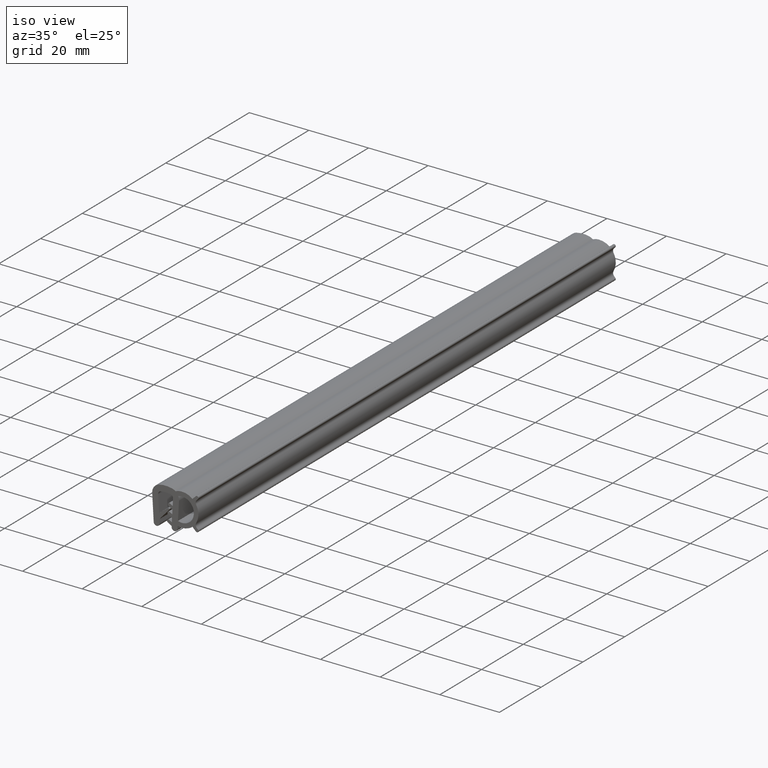
[diagram: clean part render]
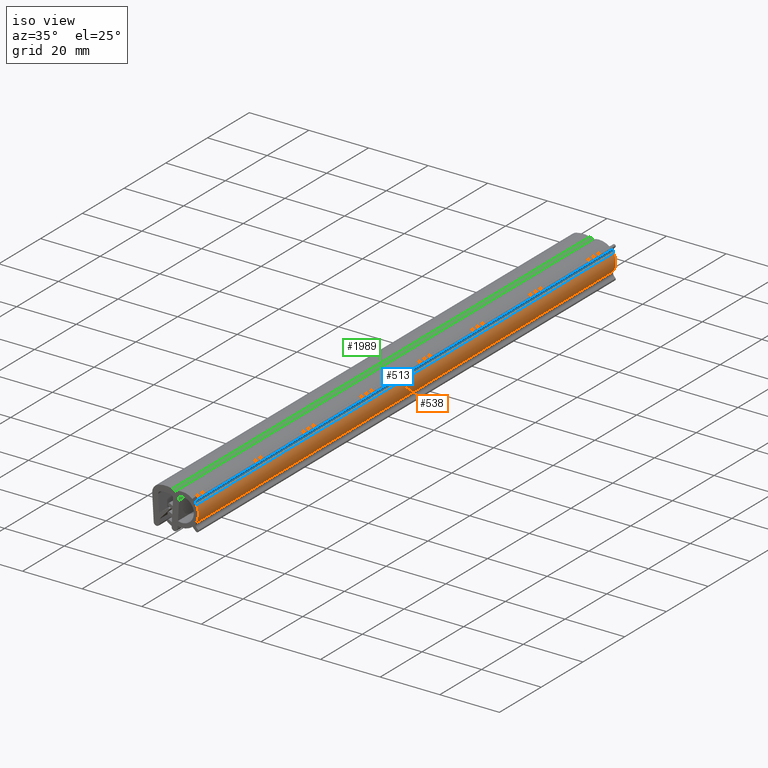
[diagram: same view with three faces highlighted in distinct colors, each labeled with its STEP entity id]
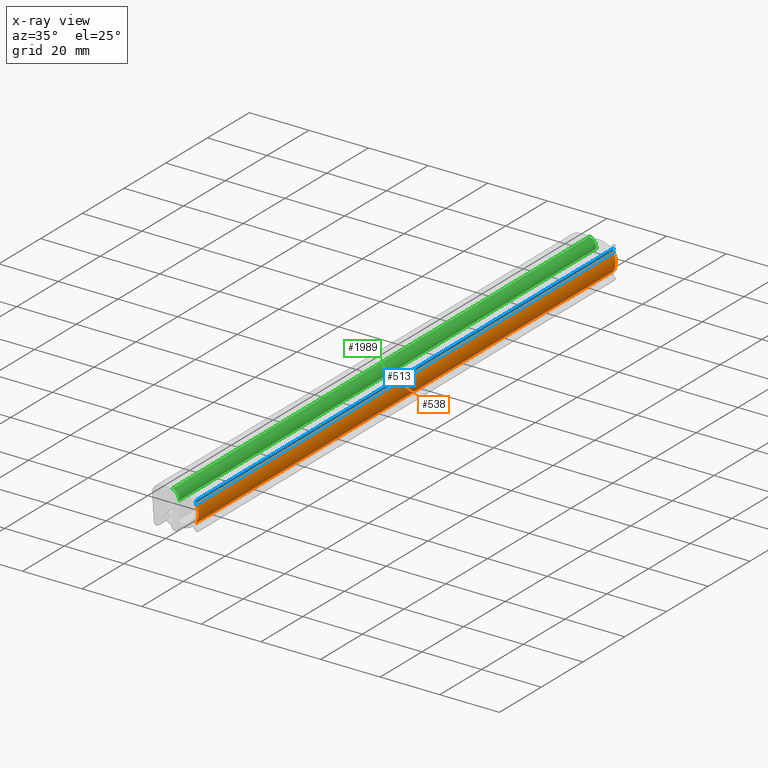
[diagram: x-ray of the same camera — body ghosted, the three highlighted faces saturated]
A machine part, iso view with three faces highlighted in distinct colors.
The next image is the same camera in x-ray (body ghosted, the three faces saturated) — at least one of them is partly hidden behind the body in this view.
Their STEP definitions:

[orange] entity #538 — the highlighted face is a freeform B-spline surface patch.
#155=CARTESIAN_POINT('',(10.248658640339320,0.0,-8.620930845074980));
#156=VERTEX_POINT('',#155);
#170=CARTESIAN_POINT('',(10.248659154392779,0.0,-3.071070048559985));
#171=VERTEX_POINT('',#170);
#172=CARTESIAN_POINT('',(10.248658640339320,0.0,-8.620930845074980));
#173=CARTESIAN_POINT('',(11.870219612001646,0.0,-5.846000597013845));
#174=CARTESIAN_POINT('',(10.248659154392771,0.0,-3.071070048559990));
#182=(BOUNDED_CURVE()B_SPLINE_CURVE(2,(#172,#173,#174),.UNSPECIFIED.,.F.,.U.)CURVE()GEOMETRIC_REPRESENTATION_ITEM()QUASI_UNIFORM_CURVE()RATIONAL_B_SPLINE_CURVE((1.0,0.863392526241438,1.0))REPRESENTATION_ITEM(''));
#183=EDGE_CURVE('',#156,#171,#182,.T.);
#289=CARTESIAN_POINT('',(10.248659154392779,200.0,-3.071070048559985));
#290=VERTEX_POINT('',#289);
#304=CARTESIAN_POINT('',(10.248658640339320,200.0,-8.620930845074980));
#305=VERTEX_POINT('',#304);
#306=CARTESIAN_POINT('',(10.248658640339350,200.0,-8.620930845075002));
#307=CARTESIAN_POINT('',(11.870219612001646,199.999999999999970,-5.846000597013845));
#308=CARTESIAN_POINT('',(10.248659154392771,200.0,-3.071070048559990));
#316=(BOUNDED_CURVE()B_SPLINE_CURVE(2,(#306,#307,#308),.UNSPECIFIED.,.F.,.U.)CURVE()GEOMETRIC_REPRESENTATION_ITEM()QUASI_UNIFORM_CURVE()RATIONAL_B_SPLINE_CURVE((1.0,0.863392526241438,1.0))REPRESENTATION_ITEM(''));
#317=EDGE_CURVE('',#305,#290,#316,.T.);
#504=CARTESIAN_POINT('',(10.248659154392779,200.0,-3.071070048559985));
#505=CARTESIAN_POINT('',(10.248659154392779,0.0,-3.071070048559985));
#506=QUASI_UNIFORM_CURVE('',1,(#504,#505),.UNSPECIFIED.,.F.,.U.);
#507=EDGE_CURVE('',#290,#171,#506,.T.);
#514=CARTESIAN_POINT('',(10.154080256618229,205.0,-2.915208816244459));
#515=CARTESIAN_POINT('',(10.154080256618229,-5.125000000000000,-2.915208816244459));
#516=CARTESIAN_POINT('',(12.035113844003270,205.0,-5.902279784921067));
#517=CARTESIAN_POINT('',(12.035113844003270,-5.125000000000000,-5.902279784921067));
#518=CARTESIAN_POINT('',(10.102914323364033,205.0,-8.856511553287040));
#519=CARTESIAN_POINT('',(10.102914323364033,-5.124999999999999,-8.856511553287040));
#527=(BOUNDED_SURFACE()B_SPLINE_SURFACE(1,2,((#514,#516,#518),(#515,#517,#519)),.UNSPECIFIED.,.F.,.F.,.U.)B_SPLINE_SURFACE_WITH_KNOTS((2,2),(3,3),(0.0,210.125000000000000),(0.0,6.452619913232966),.UNSPECIFIED.)GEOMETRIC_REPRESENTATION_ITEM()RATIONAL_B_SPLINE_SURFACE(((1.0,0.838106914392615,0.991772337921975),(1.0,0.838106914392615,0.991772337921975)))REPRESENTATION_ITEM('')SURFACE());
#528=ORIENTED_EDGE('',*,*,#183,.F.);
#529=CARTESIAN_POINT('',(10.248658640339320,200.0,-8.620930845074980));
#530=CARTESIAN_POINT('',(10.248658640339320,0.0,-8.620930845074980));
#531=QUASI_UNIFORM_CURVE('',1,(#529,#530),.UNSPECIFIED.,.F.,.U.);
#532=EDGE_CURVE('',#305,#156,#531,.T.);
#533=ORIENTED_EDGE('',*,*,#532,.F.);
#534=ORIENTED_EDGE('',*,*,#317,.T.);
#535=ORIENTED_EDGE('',*,*,#507,.T.);
#536=EDGE_LOOP('',(#528,#533,#534,#535));
#537=FACE_OUTER_BOUND('',#536,.T.);
#538=ADVANCED_FACE('',(#537),#527,.T.);

[blue] entity #513 — the highlighted face is a freeform B-spline surface patch.
#170=CARTESIAN_POINT('',(10.248659154392779,0.0,-3.071070048559985));
#171=VERTEX_POINT('',#170);
#185=CARTESIAN_POINT('',(10.436129085546019,0.0,-1.616977695636430));
#186=VERTEX_POINT('',#185);
#187=CARTESIAN_POINT('',(10.436129085546030,0.0,-1.616977695636435));
#188=CARTESIAN_POINT('',(9.781408402238345,0.0,-2.271698373879648));
#189=CARTESIAN_POINT('',(10.248659154392779,0.0,-3.071070048559985));
#197=(BOUNDED_CURVE()B_SPLINE_CURVE(2,(#187,#188,#189),.UNSPECIFIED.,.F.,.U.)CURVE()GEOMETRIC_REPRESENTATION_ITEM()QUASI_UNIFORM_CURVE()RATIONAL_B_SPLINE_CURVE((1.0,0.791718251270273,1.0))REPRESENTATION_ITEM(''));
#198=EDGE_CURVE('',#186,#171,#197,.T.);
#282=CARTESIAN_POINT('',(10.436129085546019,200.0,-1.616977695636430));
#283=VERTEX_POINT('',#282);
#289=CARTESIAN_POINT('',(10.248659154392779,200.0,-3.071070048559985));
#290=VERTEX_POINT('',#289);
#291=CARTESIAN_POINT('',(10.436129085546030,200.0,-1.616977695636435));
#292=CARTESIAN_POINT('',(9.781408402238345,200.000000000000030,-2.271698373879648));
#293=CARTESIAN_POINT('',(10.248659154392740,200.0,-3.071070048560009));
#301=(BOUNDED_CURVE()B_SPLINE_CURVE(2,(#291,#292,#293),.UNSPECIFIED.,.F.,.U.)CURVE()GEOMETRIC_REPRESENTATION_ITEM()QUASI_UNIFORM_CURVE()RATIONAL_B_SPLINE_CURVE((1.0,0.791718251270273,1.0))REPRESENTATION_ITEM(''));
#302=EDGE_CURVE('',#283,#290,#301,.T.);
#479=CARTESIAN_POINT('',(10.436129085546019,200.0,-1.616977695636430));
#480=CARTESIAN_POINT('',(10.436129085546019,0.0,-1.616977695636430));
#481=QUASI_UNIFORM_CURVE('',1,(#479,#480),.UNSPECIFIED.,.F.,.U.);
#482=EDGE_CURVE('',#283,#186,#481,.T.);
#489=CARTESIAN_POINT('',(10.264865988070000,205.0,-3.097981804698232));
#490=CARTESIAN_POINT('',(10.264865988070000,-5.125000000000000,-3.097981804698232));
#491=CARTESIAN_POINT('',(9.734155638418669,205.0,-2.242275356244888));
#492=CARTESIAN_POINT('',(9.734155638418669,-5.124999999999999,-2.242275356244888));
#493=CARTESIAN_POINT('',(10.484705098072130,205.0,-1.571035823912678));
#494=CARTESIAN_POINT('',(10.484705098072130,-5.125000000000000,-1.571035823912678));
#502=(BOUNDED_SURFACE()B_SPLINE_SURFACE(1,2,((#489,#491,#493),(#490,#492,#494)),.UNSPECIFIED.,.F.,.F.,.U.)B_SPLINE_SURFACE_WITH_KNOTS((2,2),(3,3),(0.0,210.125000000000110),(0.0,1.0),.UNSPECIFIED.)GEOMETRIC_REPRESENTATION_ITEM()RATIONAL_B_SPLINE_SURFACE(((1.0,0.766044443118978,1.0),(1.0,0.766044443118978,1.0)))REPRESENTATION_ITEM('')SURFACE());
#503=ORIENTED_EDGE('',*,*,#198,.T.);
#504=CARTESIAN_POINT('',(10.248659154392779,200.0,-3.071070048559985));
#505=CARTESIAN_POINT('',(10.248659154392779,0.0,-3.071070048559985));
#506=QUASI_UNIFORM_CURVE('',1,(#504,#505),.UNSPECIFIED.,.F.,.U.);
#507=EDGE_CURVE('',#290,#171,#506,.T.);
#508=ORIENTED_EDGE('',*,*,#507,.F.);
#509=ORIENTED_EDGE('',*,*,#302,.F.);
#510=ORIENTED_EDGE('',*,*,#482,.T.);
#511=EDGE_LOOP('',(#503,#508,#509,#510));
#512=FACE_OUTER_BOUND('',#511,.T.);
#513=ADVANCED_FACE('',(#512),#502,.F.);

[green] entity #1989 — the highlighted face is a freeform B-spline surface patch.
#1550=CARTESIAN_POINT('',(4.496700841699860,0.0,-3.363194973418345));
#1551=VERTEX_POINT('',#1550);
#1557=CARTESIAN_POINT('',(2.252474368724480,0.0,-0.286426725032116));
#1558=VERTEX_POINT('',#1557);
#1559=CARTESIAN_POINT('',(4.496700841699860,0.0,-3.363194973418345));
#1560=CARTESIAN_POINT('',(4.638177580234006,0.0,-0.903135297477817));
#1561=CARTESIAN_POINT('',(2.252474368724483,0.0,-0.286426725032112));
#1569=(BOUNDED_CURVE()B_SPLINE_CURVE(2,(#1559,#1560,#1561),.UNSPECIFIED.,.F.,.U.)CURVE()GEOMETRIC_REPRESENTATION_ITEM()QUASI_UNIFORM_CURVE()RATIONAL_B_SPLINE_CURVE((1.0,0.772746628802407,1.0))REPRESENTATION_ITEM(''));
#1570=EDGE_CURVE('',#1551,#1558,#1569,.T.);
#1624=CARTESIAN_POINT('',(2.252474368724480,200.0,-0.286426725032116));
#1625=VERTEX_POINT('',#1624);
#1639=CARTESIAN_POINT('',(4.496700841699860,200.0,-3.363194973418345));
#1640=VERTEX_POINT('',#1639);
#1641=CARTESIAN_POINT('',(4.496700841699626,200.0,-3.363194973418332));
#1642=CARTESIAN_POINT('',(4.638177580234006,200.000000000000090,-0.903135297477817));
#1643=CARTESIAN_POINT('',(2.252474368724483,200.0,-0.286426725032112));
#1651=(BOUNDED_CURVE()B_SPLINE_CURVE(2,(#1641,#1642,#1643),.UNSPECIFIED.,.F.,.U.)CURVE()GEOMETRIC_REPRESENTATION_ITEM()QUASI_UNIFORM_CURVE()RATIONAL_B_SPLINE_CURVE((1.0,0.772746628802407,1.0))REPRESENTATION_ITEM(''));
#1652=EDGE_CURVE('',#1640,#1625,#1651,.T.);
#1951=CARTESIAN_POINT('',(2.252474368724480,200.0,-0.286426725032116));
#1952=CARTESIAN_POINT('',(2.252474368724480,0.0,-0.286426725032116));
#1953=QUASI_UNIFORM_CURVE('',1,(#1951,#1952),.UNSPECIFIED.,.F.,.U.);
#1954=EDGE_CURVE('',#1625,#1558,#1953,.T.);
#1965=CARTESIAN_POINT('',(2.165857222434011,205.0,-0.265403644578698));
#1966=CARTESIAN_POINT('',(2.165857222434011,-5.125000000000000,-0.265403644578698));
#1967=CARTESIAN_POINT('',(4.805759774077171,205.000000000000060,-0.864759303327789));
#1968=CARTESIAN_POINT('',(4.805759774077171,-5.125000000000002,-0.864759303327789));
#1969=CARTESIAN_POINT('',(4.479825851808015,205.000000000000030,-3.552152048380301));
#1970=CARTESIAN_POINT('',(4.479825851808015,-5.124999999999999,-3.552152048380301));
#1978=(BOUNDED_SURFACE()B_SPLINE_SURFACE(1,2,((#1965,#1967,#1969),(#1966,#1968,#1970)),.UNSPECIFIED.,.F.,.F.,.U.)B_SPLINE_SURFACE_WITH_KNOTS((2,2),(3,3),(0.0,210.125000000000110),(0.0,4.613794676037126),.UNSPECIFIED.)GEOMETRIC_REPRESENTATION_ITEM()RATIONAL_B_SPLINE_SURFACE(((1.0,0.740242122322406,0.994137343287488),(1.0,0.740242122322406,0.994137343287488)))REPRESENTATION_ITEM('')SURFACE());
#1979=ORIENTED_EDGE('',*,*,#1570,.F.);
#1980=CARTESIAN_POINT('',(4.496700841699860,200.0,-3.363194973418345));
#1981=CARTESIAN_POINT('',(4.496700841699860,0.0,-3.363194973418345));
#1982=QUASI_UNIFORM_CURVE('',1,(#1980,#1981),.UNSPECIFIED.,.F.,.U.);
#1983=EDGE_CURVE('',#1640,#1551,#1982,.T.);
#1984=ORIENTED_EDGE('',*,*,#1983,.F.);
#1985=ORIENTED_EDGE('',*,*,#1652,.T.);
#1986=ORIENTED_EDGE('',*,*,#1954,.T.);
#1987=EDGE_LOOP('',(#1979,#1984,#1985,#1986));
#1988=FACE_OUTER_BOUND('',#1987,.T.);
#1989=ADVANCED_FACE('',(#1988),#1978,.T.);